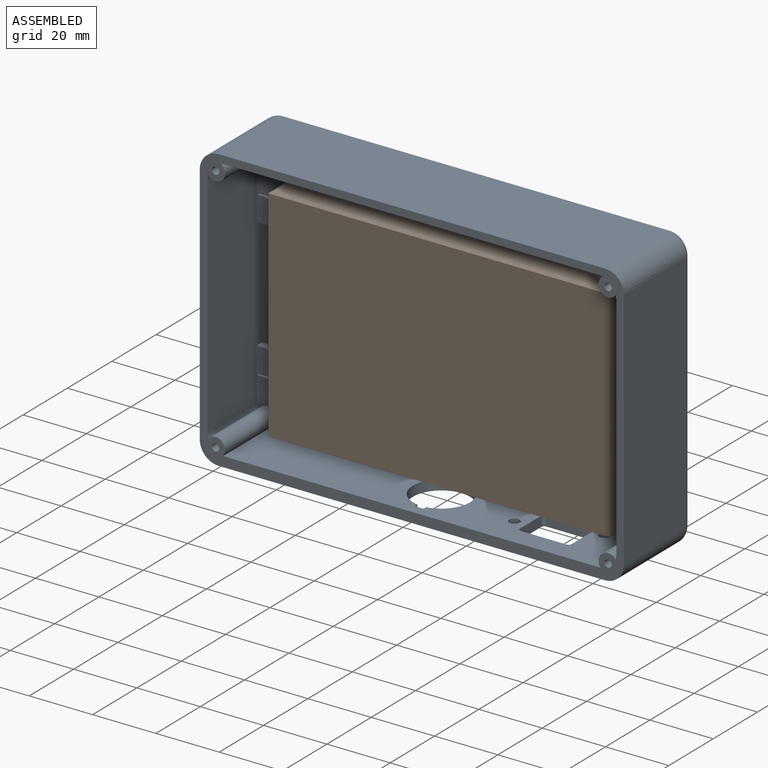
[diagram: assembled view]
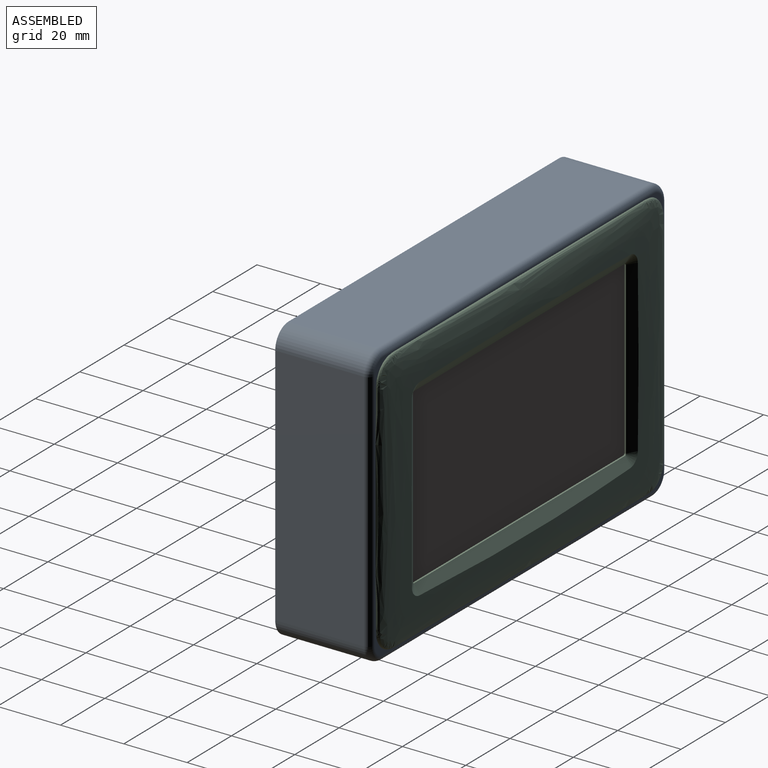
[diagram: assembled view, second angle]
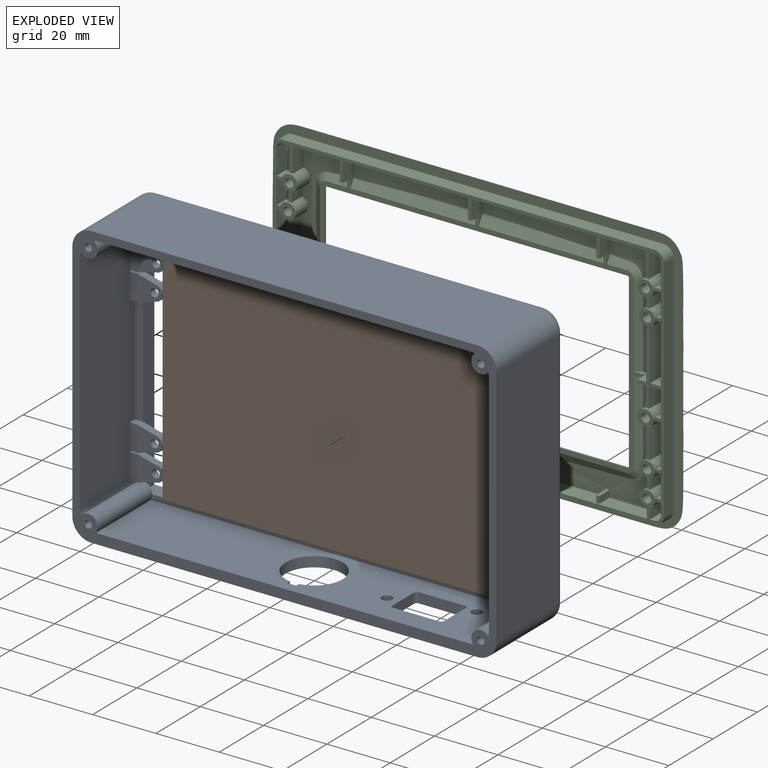
[diagram: exploded view]
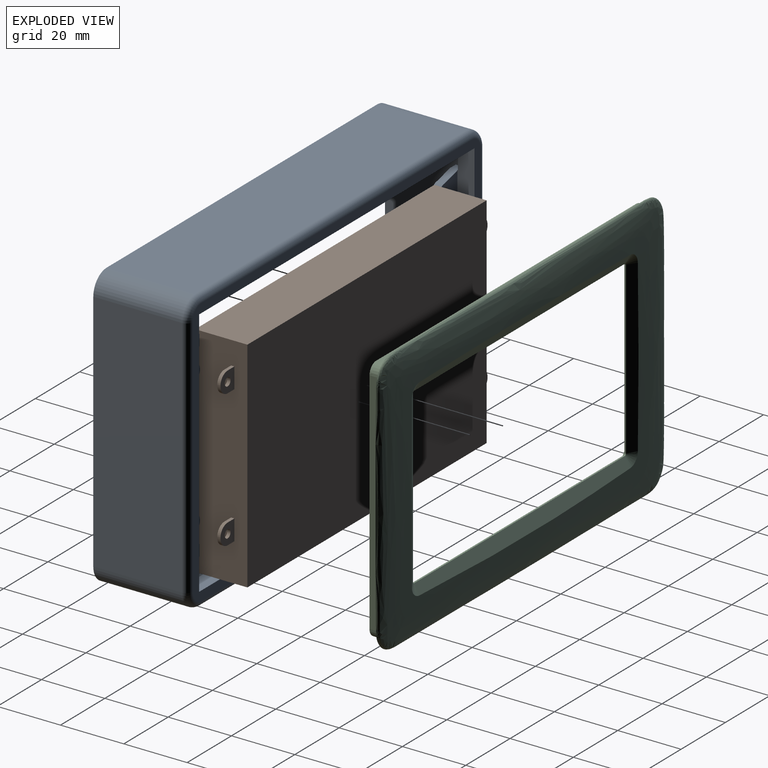
[diagram: exploded view, second angle]
ASSEMBLY  parts=3 mates=2
PART A: 162 faces, bbox 135x30x90 mm
  f0: plane 7.9x7.55mm, normal (0,1,0), area 39.3mm2, adj f71,f72,f73,f74,f77,f78,f151
  f1: plane 7.89x7.6mm, normal (0,1,0), area 37.4mm2, adj f36,f37,f38,f39,f157
  f2: plane 119.2x1.7mm, normal (0,-1,0), area 201.3mm2, adj f3,f32,f104,f141
  f3: cylinder r=3mm len=24.75mm, axis (0,-1,0), area 232.7mm2, adj f2,f12,f23,f29,f100,f141
  f4: plane 122x28mm, normal (0,0,-1), area 2951.9mm2, adj f29,f105,f106,f113,f123,f124,f125,f126
  f5: plane 130x85mm, normal (0,1,0), area 1199.6mm2, adj f30,f31,f32,f33,f109,f110,f111,f112
  f6: plane 2.5x1.63mm, normal (0,-1,0), area 2.1mm2, adj f7,f20,f31,f89,f104
  f7: cylinder r=6mm len=24.75mm, axis (0,1,0), area 39.7mm2, adj f6,f20,f29,f104
  f8: plane 120.37x2.5mm, normal (0,-1,0), area 297mm2, adj f9,f25,f26,f30,f98,f102
  f9: cylinder r=6mm len=24.75mm, axis (0,1,0), area 39.7mm2, adj f8,f26,f29,f102
  f10: plane 5.73x2.5mm, normal (0,-1,0), area 12.4mm2, adj f11,f24,f33,f75,f98
  f11: cylinder r=6mm len=24.75mm, axis (0,1,0), area 39.7mm2, adj f10,f24,f29,f98
  f12: plane 2.5x1.63mm, normal (0,-1,0), area 2.1mm2, adj f3,f23,f24,f33,f63
  f13: plane 2.5x0.45mm, normal (0,-1,0), area 1.1mm2, adj f20,f31,f35,f86
  f14: plane 5.73x2.5mm, normal (0,-1,0), area 12.4mm2, adj f20,f27,f31,f80,f102
  f15: plane 2.5x0.45mm, normal (0,-1,0), area 1.1mm2, adj f24,f33,f52,f62
  f16: plane 2.5x0.45mm, normal (0,-1,0), area 1.1mm2, adj f20,f31,f55,f90
  f17: plane 35.1x2.5mm, normal (0,-1,0), area 87.8mm2, adj f24,f33,f46,f51
  f18: plane 2.5x0.45mm, normal (0,-1,0), area 1.1mm2, adj f24,f33,f44,f76
  f19: plane 35.1x2.5mm, normal (0,-1,0), area 87.8mm2, adj f20,f31,f34,f56
  f20: plane 72.2x24.75mm, normal (-1,0,0), area 1710.1mm2, adj f6,f7,f13,f14,f16,f19,f27,f29
  f21: plane 77x28mm, normal (-1,0,0), area 2156mm2, adj f29,f105,f108,f116
  f22: plane 77x28mm, normal (1,0,0), area 2156mm2, adj f29,f106,f107,f109
  f23: cylinder r=6mm len=24.75mm, axis (0,1,0), area 39.7mm2, adj f3,f12,f24,f29
  f24: plane 72.2x24.75mm, normal (1,0,0), area 1710.1mm2, adj f10,f11,f12,f15,f17,f18,f23,f29
  f25: cylinder r=6mm len=24.75mm, axis (0,1,0), area 39.7mm2, adj f8,f26,f29,f98
  f26: plane 117.2x24.75mm, normal (0,0,-1), area 2900.7mm2, adj f8,f9,f25,f29
  f27: cylinder r=6mm len=24.75mm, axis (0,1,0), area 39.7mm2, adj f14,f20,f29,f102
  f28: plane 122x28mm, normal (0,0,1), area 3416mm2, adj f29,f107,f108,f112
  f29: plane 134x89mm, normal (0,-1,0), area 1205.3mm2, adj f3,f4,f7,f9,f11,f20,f21,f22
  f30: plane 124.2x5.25mm, normal (0,0,-1), area 652.1mm2, adj f5,f8,f31,f33,f99,f101
  f31: plane 79.2x5.4mm, normal (-1,0,0), area 420.6mm2, adj f5,f6,f13,f14,f16,f19,f30,f32
  f32: plane 124.2x5.25mm, normal (0,0,1), area 652.1mm2, adj f2,f5,f31,f33,f100,f103
  f33: plane 79.2x5.4mm, normal (1,0,0), area 420.6mm2, adj f5,f10,f12,f15,f17,f18,f30,f32
  f34: plane 2.6x2.4mm, normal (0,0,-1), area 6.2mm2, adj f19,f20,f31,f37,f40,f142
  f35: plane 2.6x2.4mm, normal (0,0,1), area 6.2mm2, adj f13,f20,f31,f39,f40,f142
  f36: cylinder r=2.5mm len=5mm, axis (0,1,0), area 18.8mm2, adj f1,f37,f39,f40
  f37: plane 5.3x2.4mm, normal (-0.27,0,-0.96), area 13.2mm2, adj f1,f34,f36,f40,f142,f157
  f38: cylinder r=1.3mm len=2.6mm, axis (0,1,0), area 19.6mm2, adj f1,f40
  f39: plane 5.3x2.4mm, normal (-0.27,0,0.96), area 13.2mm2, adj f1,f35,f36,f40,f142,f157
  f40: plane 10.4x8mm, normal (0,-1,0), area 59.8mm2, adj f20,f34,f35,f36,f37,f38,f39
  f41: plane 5.3x2.4mm, normal (0.27,0,-0.96), area 13.2mm2, adj f42,f46,f47,f122,f143,f150
  f42: cylinder r=2.5mm len=5mm, axis (0,1,0), area 18.8mm2, adj f41,f43,f47,f122
  f43: plane 5.3x2.4mm, normal (0.27,0,0.96), area 13.2mm2, adj f42,f44,f47,f122,f143,f150
  f44: plane 2.6x2.4mm, normal (0,0,1), area 6.2mm2, adj f18,f24,f33,f43,f47,f143
  f45: cylinder r=1.3mm len=2.6mm, axis (0,1,0), area 19.6mm2, adj f47,f122
  f46: plane 2.6x2.4mm, normal (0,0,-1), area 6.2mm2, adj f17,f24,f33,f41,f47,f143
  f47: plane 10.4x8mm, normal (0,-1,0), area 59.8mm2, adj f24,f41,f42,f43,f44,f45,f46
  f48: plane 5.3x2.4mm, normal (0.27,0,-0.96), area 13.2mm2, adj f49,f52,f54,f121,f144,f152
  f49: cylinder r=2.5mm len=5mm, axis (0,1,0), area 18.8mm2, adj f48,f50,f54,f121
  f50: plane 5.3x2.4mm, normal (0.27,0,0.96), area 13.2mm2, adj f49,f51,f54,f121,f144,f152
  f51: plane 2.6x2.4mm, normal (0,0,1), area 6.2mm2, adj f17,f24,f33,f50,f54,f144
  f52: plane 2.6x2.4mm, normal (0,0,-1), area 6.2mm2, adj f15,f24,f33,f48,f54,f144
  f53: cylinder r=1.3mm len=2.6mm, axis (0,1,0), area 19.6mm2, adj f54,f121
  f54: plane 10.4x8mm, normal (0,-1,0), area 59.8mm2, adj f24,f48,f49,f50,f51,f52,f53
  f55: plane 2.6x2.4mm, normal (0,0,-1), area 6.2mm2, adj f16,f20,f31,f59,f61,f145
  f56: plane 2.6x2.4mm, normal (0,0,1), area 6.2mm2, adj f19,f20,f31,f57,f61,f145
  f57: plane 5.3x2.4mm, normal (-0.27,0,0.96), area 13.2mm2, adj f56,f58,f61,f120,f145,f154
  f58: cylinder r=2.5mm len=5mm, axis (0,1,0), area 18.8mm2, adj f57,f59,f61,f120
  f59: plane 5.3x2.4mm, normal (-0.27,0,-0.96), area 13.2mm2, adj f55,f58,f61,f120,f145,f154
  f60: cylinder r=1.3mm len=2.6mm, axis (0,1,0), area 19.6mm2, adj f61,f120
  f61: plane 10.4x8mm, normal (0,-1,0), area 59.8mm2, adj f20,f55,f56,f57,f58,f59,f60
  f62: plane 2.6x2.4mm, normal (0,0,1), area 6.2mm2, adj f15,f24,f33,f68,f70,f146
  f63: plane 2.6x2.4mm, normal (0,0,-1), area 6.2mm2, adj f12,f24,f33,f64,f70,f146
  f64: plane 5.75x2.4mm, normal (0.25,0,-0.97), area 14.2mm2, adj f63,f65,f70,f119,f146,f153
  f65: cylinder r=2.5mm len=2.4mm, axis (0,1,0), area 4.8mm2, adj f64,f66,f70,f119
  f66: plane 3.47x2.4mm, normal (1,0,0), area 8.3mm2, adj f65,f67,f70,f119
  f67: cylinder r=2.5mm len=2.4mm, axis (0,1,0), area 4.8mm2, adj f66,f68,f70,f119
  f68: plane 5.75x2.4mm, normal (0.25,0,0.97), area 14.2mm2, adj f62,f67,f70,f119,f146,f153
  f69: cylinder r=1.3mm len=2.6mm, axis (0,1,0), area 19.6mm2, adj f70,f119
  f70: plane 10.15x8mm, normal (0,-1,0), area 61mm2, adj f24,f62,f63,f64,f65,f66,f67,f68
  f71: cylinder r=2.5mm len=2.4mm, axis (0,1,0), area 5.6mm2, adj f0,f72,f77,f79
  f72: plane 3x2.4mm, normal (1,0,0), area 7.2mm2, adj f0,f71,f73,f79
  f73: cylinder r=2.5mm len=2.4mm, axis (0,1,0), area 5.6mm2, adj f0,f72,f74,f79
  f74: plane 5.75x2.4mm, normal (0.25,0,0.97), area 14.2mm2, adj f0,f73,f75,f79,f147,f151
  f75: plane 2.6x2.4mm, normal (0,0,1), area 6.2mm2, adj f10,f24,f33,f74,f79,f147
  f76: plane 2.6x2.4mm, normal (0,0,-1), area 6.2mm2, adj f18,f24,f33,f77,f79,f147
  f77: plane 5.75x2.4mm, normal (0.25,0,-0.97), area 14.2mm2, adj f0,f71,f76,f79,f147,f151
  f78: cylinder r=1.3mm len=2.6mm, axis (0,1,0), area 19.6mm2, adj f0,f79
  f79: plane 10.35x8mm, normal (0,-1,0), area 61.7mm2, adj f24,f71,f72,f73,f74,f75,f76,f77
  f80: plane 2.6x2.4mm, normal (0,0,1), area 6.2mm2, adj f14,f20,f31,f81,f88,f148
  f81: plane 5.75x2.4mm, normal (-0.25,0,0.97), area 14.2mm2, adj f80,f82,f88,f118,f148,f156
  f82: cylinder r=2.5mm len=2.4mm, axis (0,1,0), area 4.8mm2, adj f81,f83,f88,f118
  f83: plane 3.47x2.4mm, normal (-1,0,0), area 8.3mm2, adj f82,f84,f88,f118
  f84: cylinder r=2.5mm len=2.4mm, axis (0,1,0), area 4.8mm2, adj f83,f85,f88,f118
  f85: plane 5.75x2.4mm, normal (-0.25,0,-0.97), area 14.2mm2, adj f84,f86,f88,f118,f148,f156
  f86: plane 2.6x2.4mm, normal (0,0,-1), area 6.2mm2, adj f13,f20,f31,f85,f88,f148
  f87: cylinder r=1.3mm len=2.6mm, axis (0,1,0), area 19.6mm2, adj f88,f118
  f88: plane 10.15x8mm, normal (0,-1,0), area 61mm2, adj f20,f80,f81,f82,f83,f84,f85,f86
  f89: plane 2.6x2.4mm, normal (0,0,-1), area 6.2mm2, adj f6,f20,f31,f96,f97,f149
  f90: plane 2.6x2.4mm, normal (0,0,1), area 6.2mm2, adj f16,f20,f31,f91,f97,f149
  f91: plane 5.75x2.4mm, normal (-0.25,0,0.97), area 14.2mm2, adj f90,f92,f97,f117,f149,f155
  f92: cylinder r=2.5mm len=2.4mm, axis (0,1,0), area 4.8mm2, adj f91,f93,f97,f117
  f93: plane 3.47x2.4mm, normal (-1,0,0), area 8.3mm2, adj f92,f94,f97,f117
  f94: cylinder r=2.5mm len=2.4mm, axis (0,1,0), area 4.8mm2, adj f93,f96,f97,f117
  f95: cylinder r=1.3mm len=2.6mm, axis (0,1,0), area 19.6mm2, adj f97,f117
  f96: plane 5.75x2.4mm, normal (-0.25,0,-0.97), area 14.2mm2, adj f89,f94,f97,f117,f149,f155
  f97: plane 10.15x8mm, normal (0,-1,0), area 61mm2, adj f20,f89,f90,f91,f92,f93,f94,f95
  f98: cylinder r=3mm len=24.75mm, axis (0,-1,0), area 253.3mm2, adj f8,f10,f11,f25,f29,f99
  f99: plane 3.1x3.1mm, normal (0,1,0), area 7.7mm2, adj f30,f33,f98
  f100: plane 3.1x3.1mm, normal (0,1,0), area 7.7mm2, adj f3,f32,f33
  f101: plane 3.1x3.1mm, normal (0,1,0), area 7.7mm2, adj f30,f31,f102
  f102: cylinder r=3mm len=24.75mm, axis (0,-1,0), area 253.3mm2, adj f8,f9,f14,f27,f29,f101
  f103: plane 3.1x3.1mm, normal (0,1,0), area 7.7mm2, adj f31,f32,f104
  f104: cylinder r=3mm len=24.75mm, axis (0,-1,0), area 232.7mm2, adj f2,f6,f7,f29,f103,f141
  f105: cylinder r=6mm len=28mm, axis (0,1,0), area 263.9mm2, adj f4,f21,f29,f115
  f106: cylinder r=6mm len=28mm, axis (0,-1,0), area 263.9mm2, adj f4,f22,f29,f111
  f107: cylinder r=6mm len=28mm, axis (0,1,0), area 263.9mm2, adj f22,f28,f29,f110
  f108: cylinder r=6mm len=28mm, axis (0,-1,0), area 263.9mm2, adj f21,f28,f29,f114
  f109: cylinder r=2mm len=77mm, axis (0,0,1), area 241.9mm2, adj f5,f22,f110,f111
  f110: torus R=4mm, axis (0,-1,0), area 26mm2, adj f5,f107,f109,f112
  f111: torus R=4mm, axis (0,-1,0), area 26mm2, adj f5,f106,f109,f113
  f112: cylinder r=2mm len=122mm, axis (-1,0,0), area 383.3mm2, adj f5,f28,f110,f114
  f113: cylinder r=2mm len=122mm, axis (1,0,0), area 383.3mm2, adj f4,f5,f111,f115
  f114: torus R=4mm, axis (0,-1,0), area 26mm2, adj f5,f108,f112,f116
  f115: torus R=4mm, axis (0,-1,0), area 26mm2, adj f5,f105,f113,f116
  f116: cylinder r=2mm len=77mm, axis (0,0,-1), area 241.9mm2, adj f5,f21,f114,f115
  f117: plane 7.9x7.35mm, normal (0,1,0), area 38.6mm2, adj f91,f92,f93,f94,f95,f96,f155
  f118: plane 7.9x7.35mm, normal (0,1,0), area 38.6mm2, adj f81,f82,f83,f84,f85,f87,f156
  f119: plane 7.9x7.35mm, normal (0,1,0), area 38.6mm2, adj f64,f65,f66,f67,f68,f69,f153
  f120: plane 7.89x7.6mm, normal (0,1,0), area 37.4mm2, adj f57,f58,f59,f60,f154
  f121: plane 7.89x7.6mm, normal (0,1,0), area 37.4mm2, adj f48,f49,f50,f53,f152
  f122: plane 7.89x7.6mm, normal (0,1,0), area 37.4mm2, adj f41,f42,f43,f45,f150
  f123: cylinder r=9mm len=18mm, axis (0,0,-1), area 172mm2, adj f4,f124,f126,f141
  f124: plane 3.2x1.21mm, normal (-1,0,0), area 3.9mm2, adj f4,f123,f125,f141
  f125: plane 3.2x2.8mm, normal (0,1,0), area 9mm2, adj f4,f124,f126,f141
  f126: plane 3.2x1.21mm, normal (1,0,0), area 3.9mm2, adj f4,f123,f125,f141
  f127: plane 14.4x3.2mm, normal (0,1,0), area 46.1mm2, adj f4,f128,f134,f141
  f128: cylinder r=1mm len=3.2mm, axis (0,0,-1), area 5mm2, adj f4,f127,f129,f141
  f129: plane 9.6x3.2mm, normal (1,0,0), area 30.7mm2, adj f4,f128,f130,f141
  f130: cylinder r=1mm len=3.2mm, axis (0,0,-1), area 5mm2, adj f4,f129,f131,f141
  f131: plane 14.4x3.2mm, normal (0,-1,0), area 46.1mm2, adj f4,f130,f132,f141
  f132: cylinder r=1mm len=3.2mm, axis (0,0,-1), area 5mm2, adj f4,f131,f133,f141
  f133: plane 9.6x3.2mm, normal (-1,0,0), area 30.7mm2, adj f4,f132,f134,f141
  f134: cylinder r=1mm len=3.2mm, axis (0,0,-1), area 5mm2, adj f4,f127,f133,f141
  f135: cylinder r=1.65mm len=3.3mm, axis (0,0,-1), area 33.2mm2, adj f4,f141
  f136: cylinder r=1.65mm len=3.3mm, axis (0,0,-1), area 33.2mm2, adj f4,f141
  f137: cone r=0mm half-angle=59deg, axis (0,-1,0), area 4mm2, adj f161
  f138: cone r=0mm half-angle=59deg, axis (0,-1,0), area 4mm2, adj f160
  f139: cone r=0mm half-angle=59deg, axis (0,-1,0), area 4mm2, adj f158
  f140: cone r=0mm half-angle=59deg, axis (0,-1,0), area 4mm2, adj f159
  f141: plane 119.2x24.75mm, normal (0,0,1), area 2486.1mm2, adj f2,f3,f29,f104,f123,f124,f125,f126
  f142: plane 8x0.15mm, normal (0,1,0), area 1.2mm2, adj f31,f34,f35,f37,f39,f157
  f143: plane 8x0.15mm, normal (0,1,0), area 1.2mm2, adj f33,f41,f43,f44,f46,f150
  f144: plane 8x0.15mm, normal (0,1,0), area 1.2mm2, adj f33,f48,f50,f51,f52,f152
  f145: plane 8x0.15mm, normal (0,1,0), area 1.2mm2, adj f31,f55,f56,f57,f59,f154
  f146: plane 8x0.15mm, normal (0,1,0), area 1.2mm2, adj f33,f62,f63,f64,f68,f153
  f147: plane 8x0.15mm, normal (0,1,0), area 1.2mm2, adj f33,f74,f75,f76,f77,f151
  f148: plane 8x0.15mm, normal (0,1,0), area 1.2mm2, adj f31,f80,f81,f85,f86,f156
  f149: plane 8x0.15mm, normal (0,1,0), area 1.2mm2, adj f31,f89,f90,f91,f96,f155
  f150: plane 7.97x0.15mm, normal (-0.71,0.71,0), area 1.7mm2, adj f41,f43,f122,f143
  f151: plane 7.97x0.15mm, normal (-0.71,0.71,0), area 1.7mm2, adj f0,f74,f77,f147
  f152: plane 7.97x0.15mm, normal (-0.71,0.71,0), area 1.7mm2, adj f48,f50,f121,f144
  f153: plane 7.97x0.15mm, normal (-0.71,0.71,0), area 1.7mm2, adj f64,f68,f119,f146
  f154: plane 7.97x0.15mm, normal (0.71,0.71,0), area 1.7mm2, adj f57,f59,f120,f145
  f155: plane 7.97x0.15mm, normal (0.71,0.71,0), area 1.7mm2, adj f91,f96,f117,f149
  f156: plane 7.97x0.15mm, normal (0.71,0.71,0), area 1.7mm2, adj f81,f85,f118,f148
  f157: plane 7.97x0.15mm, normal (0.71,0.71,0), area 1.7mm2, adj f1,f37,f39,f142
  f158: cone r=1.05mm half-angle=0.6deg, axis (0,-1,0), area 69.1mm2, adj f29,f139
  f159: cone r=1.05mm half-angle=0.6deg, axis (0,-1,0), area 69.1mm2, adj f29,f140
  f160: cone r=1.05mm half-angle=0.6deg, axis (0,-1,0), area 69.1mm2, adj f29,f138
  f161: cone r=1.05mm half-angle=0.6deg, axis (0,-1,0), area 69.1mm2, adj f29,f137
PART B: 30 faces, bbox 120.5x69.3x16.5 mm
  f0: plane 69.3x16.5mm, normal (1,0,0), area 1130.1mm2, adj f2,f3,f4,f5,f18,f20,f22,f23
  f1: plane 69.3x16.5mm, normal (-1,0,0), area 1130.1mm2, adj f2,f3,f4,f5,f7,f8,f10,f11
  f2: plane 107.9x16.5mm, normal (0,-1,0), area 1780.3mm2, adj f0,f1,f4,f5
  f3: plane 107.9x16.5mm, normal (0,1,0), area 1780.3mm2, adj f0,f1,f4,f5
  f4: plane 107.9x69.3mm, normal (0,0,-1), area 7477.5mm2, adj f0,f1,f2,f3
  f5: plane 107.9x69.3mm, normal (0,0,1), area 7477.5mm2, adj f0,f1,f2,f3
  f6: cylinder r=3.25mm len=6.5mm, axis (0,0,-1), area 10.5mm2, adj f7,f8,f10,f11
  f7: plane 3.05x1.03mm, normal (0,-1,0), area 3.1mm2, adj f1,f6,f10,f11
  f8: plane 3.05x1.03mm, normal (0,1,0), area 3.1mm2, adj f1,f6,f10,f11
  f9: cylinder r=1.3mm len=2.6mm, axis (0,0,-1), area 8.4mm2, adj f10,f11
  f10: plane 6.5x6.3mm, normal (0,0,1), area 31.1mm2, adj f1,f6,f7,f8,f9
  f11: plane 6.5x6.3mm, normal (0,0,-1), area 31.1mm2, adj f1,f6,f7,f8,f9
  f12: cylinder r=3.25mm len=6.5mm, axis (0,0,-1), area 10.5mm2, adj f13,f14,f16,f17
  f13: plane 3.05x1.03mm, normal (0,-1,0), area 3.1mm2, adj f1,f12,f16,f17
  f14: plane 3.05x1.03mm, normal (0,1,0), area 3.1mm2, adj f1,f12,f16,f17
  f15: cylinder r=1.3mm len=2.6mm, axis (0,0,-1), area 8.4mm2, adj f16,f17
  f16: plane 6.5x6.3mm, normal (0,0,1), area 31.1mm2, adj f1,f12,f13,f14,f15
  f17: plane 6.5x6.3mm, normal (0,0,-1), area 31.1mm2, adj f1,f12,f13,f14,f15
  f18: plane 3.05x1.03mm, normal (0,-1,0), area 3.1mm2, adj f0,f19,f22,f23
  f19: cylinder r=3.25mm len=6.5mm, axis (0,0,-1), area 10.5mm2, adj f18,f20,f22,f23
  f20: plane 3.05x1.03mm, normal (0,1,0), area 3.1mm2, adj f0,f19,f22,f23
  f21: cylinder r=1.3mm len=2.6mm, axis (0,0,-1), area 8.4mm2, adj f22,f23
  f22: plane 6.5x6.3mm, normal (0,0,1), area 31.1mm2, adj f0,f18,f19,f20,f21
  f23: plane 6.5x6.3mm, normal (0,0,-1), area 31.1mm2, adj f0,f18,f19,f20,f21
  f24: plane 3.05x1.03mm, normal (0,1,0), area 3.1mm2, adj f0,f26,f28,f29
  f25: plane 3.05x1.03mm, normal (0,-1,0), area 3.1mm2, adj f0,f26,f28,f29
  f26: cylinder r=3.25mm len=6.5mm, axis (0,0,-1), area 10.5mm2, adj f24,f25,f28,f29
  f27: cylinder r=1.3mm len=2.6mm, axis (0,0,-1), area 8.4mm2, adj f28,f29
  f28: plane 6.5x6.3mm, normal (0,0,1), area 31.1mm2, adj f0,f24,f25,f26,f27
  f29: plane 6.5x6.3mm, normal (0,0,-1), area 31.1mm2, adj f0,f24,f25,f26,f27
PART C: 201 faces, bbox 132.2x10.4x86.8 mm
  f0: cone r=1.34mm half-angle=0.2deg, axis (0,1,0), area 45.5mm2, adj f1,f2
  f1: bspline ~31.47x6.72mm, area 0mm2, adj f0
  f2: plane 5x5mm, normal (0,1,0), area 14mm2, adj f0,f3
  f3: cone r=2.5mm half-angle=0.2deg, axis (0,-1,0), area 70mm2, adj f2,f4,f190,f191,f192,f193,f194,f195
  f4: plane 4.91x1.68mm, normal (0,0.02,-1), area 6.6mm2, adj f3,f5,f190,f200
  f5: plane 7.54x4.83mm, normal (1,0.02,0), area 33.4mm2, adj f4,f6,f190,f200
  f6: plane 5.02x2.51mm, normal (0,0.02,1), area 9.4mm2, adj f5,f7,f190,f200
  f7: cone r=2.5mm half-angle=1.3deg, axis (0,-1,0), area 74.6mm2, adj f6,f8,f12,f13,f14,f187,f190,f191
  f8: plane 4.9x2.4mm, normal (0,0.02,-1), area 9.4mm2, adj f7,f9,f12,f200
  f9: plane 8.09x4.82mm, normal (1,0.02,0), area 34.9mm2, adj f8,f10,f12,f200
  f10: cone r=2mm half-angle=1.3deg, axis (0,1,0), area 13.5mm2, adj f9,f11,f12,f200
  f11: plane 4.76x2.37mm, normal (0,0.02,1), area 9.2mm2, adj f10,f12,f13,f200
  f12: bspline ~25.79x6.25mm, area 34.1mm2, adj f7,f8,f9,f10,f11,f13
  f13: plane 8.37x5.22mm, normal (-1,0.02,0), area 35.9mm2, adj f7,f11,f12,f200
  f14: plane 8.35x5.24mm, normal (1,0.02,0), area 36.2mm2, adj f7,f15,f194,f200
  f15: plane 113.61x7.21mm, normal (0,0.02,1), area 531mm2, adj f14,f16,f175,f176,f177,f178,f179,f180
  f16: plane 9.8x5.21mm, normal (-1,0.02,0), area 31.7mm2, adj f15,f17,f139,f140,f186,f194
  f17: plane 6.45x2.36mm, normal (0,0.87,-0.5), area 16.7mm2, adj f16,f18,f140,f194
  f18: cone r=2mm half-angle=60deg, axis (0,-1,0), area 11.6mm2, adj f17,f19,f140,f194
  f19: plane 26.83x2.71mm, normal (-0.5,0.87,0), area 66mm2, adj f18,f20,f140,f194
  f20: plane 6.75x4.62mm, normal (0,0.02,-1), area 18mm2, adj f19,f21,f138,f140,f194,f195
  f21: plane 3.31x1.14mm, normal (1,0.02,0), area 3.5mm2, adj f20,f22,f138,f140
  f22: plane 6.95x4.83mm, normal (0,0.02,1), area 18mm2, adj f21,f23,f137,f138,f140,f195
  f23: plane 26.94x2.81mm, normal (-0.5,0.87,0), area 66mm2, adj f22,f24,f137,f140
  f24: cone r=2mm half-angle=60deg, axis (0,-1,0), area 11.6mm2, adj f23,f25,f137,f140
  f25: plane 95.04x3.08mm, normal (0,0.87,0.5), area 301.8mm2, adj f24,f26,f137,f140
  f26: cone r=2mm half-angle=60deg, axis (0,-1,0), area 11.6mm2, adj f25,f27,f137,f140
  f27: plane 26.94x2.81mm, normal (0.5,0.87,0), area 66mm2, adj f26,f28,f137,f140
  f28: plane 6.7x4.8mm, normal (0,0.02,1), area 16.2mm2, adj f27,f29,f34,f35,f137,f140
  f29: plane 3.31x1.14mm, normal (-1,0.02,0), area 3.5mm2, adj f28,f30,f34,f140
  f30: plane 7.17x5.26mm, normal (0,0.02,-1), area 16.2mm2, adj f29,f31,f34,f35,f140,f176
  f31: plane 26.83x2.71mm, normal (0.5,0.87,0), area 66mm2, adj f30,f32,f140,f176
  f32: cone r=2mm half-angle=60deg, axis (0,-1,0), area 11.6mm2, adj f31,f33,f140,f176
  f33: plane 6.45x2.36mm, normal (0,0.87,-0.5), area 16.7mm2, adj f32,f140,f176,f177
  f34: plane 2.89x1mm, normal (0,1,0), area 2.9mm2, adj f28,f29,f30,f35
  f35: plane 24.05x5.22mm, normal (-1,0.02,-0.01), area 110.8mm2, adj f28,f30,f34,f36,f66,f67,f137,f176
  f36: cone r=2.5mm half-angle=0.2deg, axis (0,-1,0), area 70mm2, adj f35,f37,f50,f51,f52,f53,f54,f61
  f37: plane 4.81x3.44mm, normal (-1,0.02,0.04), area 16.3mm2, adj f36,f38,f50,f176
  f38: cone r=2.5mm half-angle=1.3deg, axis (0,-1,0), area 74.4mm2, adj f37,f39,f43,f44,f45,f47,f50,f51
  f39: plane 8.37x5.2mm, normal (1,0.02,0), area 35.8mm2, adj f38,f40,f43,f200
  f40: plane 4.69x1.95mm, normal (0,0.02,1), area 7.5mm2, adj f39,f41,f43,f200
  f41: cone r=2mm half-angle=1.3deg, axis (0,1,0), area 13.5mm2, adj f40,f42,f43,f200
  f42: plane 8.09x4.82mm, normal (-1,0.02,0), area 34.6mm2, adj f41,f43,f44,f200
  f43: bspline ~25.79x5.12mm, area 30.6mm2, adj f38,f39,f40,f41,f42,f44
  f44: plane 4.71x1.87mm, normal (0,0.02,-1), area 7.7mm2, adj f38,f42,f43,f200
  f45: plane 4.66x1.8mm, normal (0,0.02,1), area 7.8mm2, adj f38,f46,f52,f200
  f46: plane 7.54x4.83mm, normal (-1,0.02,0), area 33.4mm2, adj f45,f52,f53,f200
  f47: plane 5x5mm, normal (0,1,0), area 14mm2, adj f38,f48
  f48: cone r=1.34mm half-angle=0.2deg, axis (0,1,0), area 46.7mm2, adj f47,f49
  f49: bspline ~21.06x6.66mm, area 0mm2, adj f48
  f50: plane 3.47x1.13mm, normal (0,1,0), area 3.4mm2, adj f36,f37,f38,f51
  f51: plane 4.77x3.43mm, normal (1,0.02,-0.04), area 16.1mm2, adj f36,f38,f50,f52
  f52: bspline ~34.56x5.16mm, area 20.6mm2, adj f36,f38,f45,f46,f51,f53
  f53: plane 4.91x1.68mm, normal (0,0.02,-1), area 6.6mm2, adj f36,f46,f52,f200
  f54: plane 4.91x1.67mm, normal (0,0.02,1), area 6.7mm2, adj f36,f55,f61,f200
  f55: plane 27.79x4.86mm, normal (-1,0.02,0), area 124.8mm2, adj f54,f56,f57,f58,f59,f60,f61,f200
  f56: plane 4.96x1.95mm, normal (0,0.02,-1), area 8mm2, adj f55,f57,f67,f200
  f57: bspline ~36.99x5.16mm, area 25.7mm2, adj f55,f56,f58,f62,f67
  f58: plane 4.66x3.8mm, normal (0,0.02,1), area 15.7mm2, adj f55,f57,f59,f62
  f59: plane 3.63x1mm, normal (0,1,0), area 3.6mm2, adj f55,f58,f60,f62
  f60: plane 4.66x3.79mm, normal (0,0.02,-1), area 15.6mm2, adj f55,f59,f61,f62
  f61: bspline ~44.05x5.16mm, area 59.4mm2, adj f36,f54,f55,f60,f62
  f62: plane 24.09x5.24mm, normal (1,0.02,0.01), area 110.1mm2, adj f36,f57,f58,f59,f60,f61,f66,f67
  f63: plane 5x5mm, normal (0,1,0), area 14mm2, adj f36,f64
  f64: cone r=1.34mm half-angle=0.2deg, axis (0,1,0), area 45.5mm2, adj f63,f65
  f65: bspline ~31.47x6.72mm, area 0mm2, adj f64
  f66: plane 23.74x1.27mm, normal (0,1,0), area 23.7mm2, adj f35,f36,f62,f67
  f67: cone r=2.5mm half-angle=1.3deg, axis (0,-1,0), area 76.1mm2, adj f35,f56,f57,f62,f66,f68,f130,f131
  f68: plane 4.96x1.96mm, normal (0,0.02,1), area 8mm2, adj f67,f69,f130,f200
  f69: plane 13.93x4.98mm, normal (-1,0.02,0), area 63.2mm2, adj f68,f70,f130,f200
  f70: plane 4.93x1.73mm, normal (0,0.02,-1), area 6.6mm2, adj f69,f71,f130,f200
  f71: cone r=2.5mm half-angle=0.2deg, axis (0,-1,0), area 69.5mm2, adj f70,f72,f123,f124,f125,f126,f127,f130
  f72: plane 4.95x1.76mm, normal (0,0.02,1), area 6.6mm2, adj f71,f73,f123,f200
  f73: plane 8.05x5.3mm, normal (-1,0.02,0), area 33.1mm2, adj f72,f74,f123,f200
  f74: plane 4.84x1.74mm, normal (0,0.02,-1), area 6.5mm2, adj f73,f75,f123,f200
  f75: cone r=2.5mm half-angle=0.2deg, axis (0,-1,0), area 68.4mm2, adj f74,f76,f80,f81,f82,f120,f123,f124
  f76: plane 4.74x1.67mm, normal (0,0.02,1), area 6.4mm2, adj f75,f77,f80,f200
  f77: plane 4.71x3.8mm, normal (-1,0.02,0), area 15.7mm2, adj f76,f78,f80,f200
  f78: cone r=2mm half-angle=1.3deg, axis (0,1,0), area 13.5mm2, adj f77,f79,f80,f200
  f79: plane 4.61x1.56mm, normal (0,0.02,-1), area 6.1mm2, adj f78,f80,f81,f200
  f80: bspline ~14.42x5.02mm, area 13.9mm2, adj f75,f76,f77,f78,f79,f81
  f81: plane 4.8x3.83mm, normal (1,0.02,0), area 16.3mm2, adj f75,f79,f80,f200
  f82: plane 4.87x3.84mm, normal (-1,0.02,0), area 16.5mm2, adj f75,f83,f137,f200
  f83: plane 112.98x6.27mm, normal (0,0.02,-1), area 537.7mm2, adj f82,f84,f86,f87,f88,f116,f118,f119
  f84: plane 4.68x2.38mm, normal (-1,0.02,0), area 9.9mm2, adj f83,f85,f86,f137
  f85: plane 4.59x1.2mm, normal (0,0.02,-1), area 5mm2, adj f84,f86,f87,f137
  f86: plane 2.19x1mm, normal (0,1,0), area 2.2mm2, adj f83,f84,f85,f87
  f87: plane 4.66x2.38mm, normal (1,0.02,0), area 9.9mm2, adj f83,f85,f86,f137
  f88: plane 4.89x3.82mm, normal (1,0.02,0), area 16.3mm2, adj f83,f89,f137,f200
  f89: cone r=2.5mm half-angle=1.3deg, axis (0,-1,0), area 73.9mm2, adj f88,f90,f103,f104,f105,f106,f107,f111
  f90: plane 4.64x2.18mm, normal (0,0.02,-1), area 9.3mm2, adj f89,f91,f103,f200
  f91: plane 8.05x5.3mm, normal (1,0.02,0), area 33.1mm2, adj f90,f92,f103,f200
  f92: plane 4.95x1.76mm, normal (0,0.02,1), area 6.6mm2, adj f91,f93,f103,f200
  f93: cone r=2.5mm half-angle=0.2deg, axis (0,-1,0), area 69.5mm2, adj f92,f94,f99,f100,f103,f104,f105,f106
  f94: plane 4.93x1.73mm, normal (0,0.02,-1), area 6.6mm2, adj f93,f95,f99,f200
  f95: plane 42.44x4.86mm, normal (1,0.02,0), area 193.2mm2, adj f94,f96,f97,f98,f99,f198,f199,f200
  f96: plane 4.63x3.55mm, normal (0,0.02,-1), area 14.7mm2, adj f95,f97,f197,f198
  f97: plane 3.41x1mm, normal (0,1,0), area 3.4mm2, adj f95,f96,f98,f197
  f98: plane 4.63x3.55mm, normal (0,0.02,1), area 14.7mm2, adj f95,f97,f99,f197
  f99: bspline ~43.34x5.16mm, area 71.2mm2, adj f93,f94,f95,f98,f197
  f100: plane 5x5mm, normal (0,1,0), area 14mm2, adj f93,f101
  f101: cone r=1.34mm half-angle=0.2deg, axis (0,1,0), area 45.2mm2, adj f100,f102
  f102: bspline ~29.79x6.72mm, area 0mm2, adj f101
  f103: bspline ~32.89x5.16mm, area 21.9mm2, adj f89,f90,f91,f92,f93,f104
  f104: plane 4.73x3.45mm, normal (-1,0.02,0.08), area 16.1mm2, adj f89,f93,f103,f105
  f105: plane 3.53x1.28mm, normal (0,1,0), area 3.4mm2, adj f89,f93,f104,f106
  f106: plane 4.77x3.46mm, normal (1,0.02,-0.08), area 16.3mm2, adj f89,f93,f105,f137
  f107: plane 4.84x3.82mm, normal (-1,0.02,0), area 16.1mm2, adj f89,f108,f111,f200
  f108: plane 4.76x2.37mm, normal (0,0.02,-1), area 9.2mm2, adj f107,f109,f111,f200
  f109: cone r=2mm half-angle=1.3deg, axis (0,1,0), area 13.5mm2, adj f108,f110,f111,f200
  f110: plane 4.71x3.8mm, normal (1,0.02,0), area 15.7mm2, adj f109,f111,f112,f200
  f111: bspline ~14.42x6.15mm, area 17.3mm2, adj f89,f107,f108,f109,f110,f112
  f112: plane 4.62x2.19mm, normal (0,0.02,1), area 9.3mm2, adj f89,f110,f111,f200
  f113: plane 5x5mm, normal (0,1,0), area 14mm2, adj f89,f114
  f114: cone r=1.34mm half-angle=0.2deg, axis (0,1,0), area 46.4mm2, adj f113,f115
  f115: bspline ~11.69x11.42mm, area 0mm2, adj f114
  f116: plane 4.66x2.38mm, normal (-1,0.02,0), area 9.9mm2, adj f83,f117,f118,f137
  f117: plane 4.59x1.2mm, normal (0,0.02,-1), area 5mm2, adj f116,f118,f119,f137
  f118: plane 2.19x1mm, normal (0,1,0), area 2.2mm2, adj f83,f116,f117,f119
  f119: plane 4.68x2.38mm, normal (1,0.02,0), area 9.9mm2, adj f83,f117,f118,f137
  f120: plane 5x5mm, normal (0,1,0), area 14mm2, adj f75,f121
  f121: cone r=1.34mm half-angle=0.2deg, axis (0,1,0), area 44.4mm2, adj f120,f122
  f122: bspline ~11.42x6.54mm, area 0mm2, adj f121
  f123: bspline ~32.89x5.16mm, area 19.7mm2, adj f71,f72,f73,f74,f75,f124
  f124: plane 4.72x3.45mm, normal (1,0.02,0), area 16.2mm2, adj f71,f75,f123,f125
  f125: plane 3.45x1mm, normal (0,1,0), area 3.4mm2, adj f71,f75,f124,f126
  f126: plane 4.77x3.45mm, normal (-1,0.02,0), area 16.4mm2, adj f71,f75,f125,f137
  f127: plane 5x5mm, normal (0,1,0), area 14mm2, adj f71,f128
  f128: cone r=1.34mm half-angle=0.2deg, axis (0,1,0), area 45.2mm2, adj f127,f129
  f129: bspline ~29.79x6.72mm, area 0mm2, adj f128
  f130: bspline ~43.34x5.16mm, area 41.9mm2, adj f67,f68,f69,f70,f71,f131
  f131: plane 9.8x4.92mm, normal (1,0.02,-0.02), area 46.6mm2, adj f67,f71,f130,f132
  f132: plane 9.75x1.21mm, normal (0,1,0), area 9.7mm2, adj f67,f71,f131,f133
  f133: plane 9.84x4.98mm, normal (-1,0.02,0.02), area 47mm2, adj f67,f71,f132,f137
  f134: plane 5x5mm, normal (0,1,0), area 14mm2, adj f67,f135
  f135: cone r=1.34mm half-angle=0.2deg, axis (0,1,0), area 47.9mm2, adj f134,f136
  f136: bspline ~37.09x6.72mm, area 0mm2, adj f135
  f137: bspline ~115.65x51.34mm, area 970.6mm2, adj f22,f23,f24,f25,f26,f27,f28,f35
  f138: plane 3.34x1mm, normal (0,1,0), area 3.3mm2, adj f20,f21,f22,f195
  f139: plane 3.31x1.14mm, normal (0,0.02,1), area 3.5mm2, adj f16,f140,f185,f186
  f140: plane 105.9x60.61mm, normal (0,1,0), area 475.8mm2, adj f16,f17,f18,f19,f20,f21,f22,f23
  f141: plane 95.04x0.51mm, normal (0,-0.02,1), area 48.1mm2, adj f140,f142,f164,f170
  f142: plane 95.04x3.95mm, normal (0,-0.87,0.5), area 397.1mm2, adj f141,f143,f149,f150
  f143: cone r=0.5mm half-angle=60deg, axis (0,-1,0), area 10.7mm2, adj f142,f144,f150,f164
  f144: plane 56.24x5.49mm, normal (0.5,-0.87,0), area 189.8mm2, adj f143,f145,f150,f165
  f145: cone r=0.5mm half-angle=60deg, axis (0,-1,0), area 10.7mm2, adj f144,f146,f150,f166
  f146: plane 95.04x3.95mm, normal (0,-0.87,-0.5), area 397.3mm2, adj f145,f147,f150,f167
  f147: cone r=0.5mm half-angle=60deg, axis (0,-1,0), area 10.7mm2, adj f146,f148,f150,f168
  f148: plane 56.24x5.49mm, normal (-0.5,-0.87,0), area 189.7mm2, adj f147,f149,f150,f169
  f149: cone r=0.5mm half-angle=60deg, axis (0,-1,0), area 10.7mm2, adj f142,f148,f150,f170
  f150: bspline ~122.92x78.99mm, area 3406.6mm2, adj f142,f143,f144,f145,f146,f147,f148,f149
  f151: bspline ~80.02x3.96mm, area 302.5mm2, adj f150,f152,f161,f163
  f152: plane 129.8x84.4mm, normal (0,1,0), area 1187.9mm2, adj f151,f153,f154,f155,f156,f157,f158,f159
  f153: cone r=3mm half-angle=1.3deg, axis (0,-1,0), area 19.8mm2, adj f152,f154,f160,f200
  f154: plane 72.4x4.13mm, normal (-1,0.02,0), area 299.1mm2, adj f152,f153,f155,f200
  f155: cone r=3mm half-angle=1.3deg, axis (0,-1,0), area 19.8mm2, adj f152,f154,f156,f200
  f156: plane 117.35x4.13mm, normal (0,0.02,1), area 484.8mm2, adj f152,f155,f157,f200
  f157: cone r=3mm half-angle=1.3deg, axis (0,-1,0), area 19.8mm2, adj f152,f156,f158,f200
  f158: plane 72.4x4.13mm, normal (1,0.02,0), area 299.1mm2, adj f152,f157,f159,f200
  f159: cone r=3mm half-angle=1.3deg, axis (0,-1,0), area 19.8mm2, adj f152,f158,f160,f200
  f160: plane 117.35x4.13mm, normal (0,0.02,-1), area 484.8mm2, adj f152,f153,f159,f200
  f161: bspline ~125x3.38mm, area 413.7mm2, adj f150,f151,f152,f162
  f162: bspline ~80.02x3.96mm, area 302.5mm2, adj f150,f152,f161,f163
  f163: bspline ~125x3.38mm, area 413.7mm2, adj f150,f151,f152,f162
  f164: cone r=0.5mm half-angle=1.3deg, axis (0,-1,0), area 0.4mm2, adj f140,f141,f143,f165
  f165: plane 53.86x0.51mm, normal (1,-0.02,0), area 27.3mm2, adj f140,f144,f164,f166
  f166: cone r=0.5mm half-angle=1.3deg, axis (0,-1,0), area 0.4mm2, adj f140,f145,f165,f167
  f167: plane 95.04x0.51mm, normal (0,-0.02,-1), area 48.1mm2, adj f140,f146,f166,f168
  f168: cone r=0.5mm half-angle=1.3deg, axis (0,-1,0), area 0.4mm2, adj f140,f147,f167,f169
  f169: plane 53.86x0.51mm, normal (-1,-0.02,0), area 27.3mm2, adj f140,f148,f168,f170
  f170: cone r=0.5mm half-angle=1.3deg, axis (0,-1,0), area 0.4mm2, adj f140,f141,f149,f169
  f171: plane 39.95x3.67mm, normal (0,0.87,-0.5), area 128.9mm2, adj f140,f183,f184,f185
  f172: plane 3.31x1.14mm, normal (0,0.02,1), area 3.5mm2, adj f140,f181,f182,f183
  f173: plane 39.93x3.65mm, normal (0,0.87,-0.5), area 128.9mm2, adj f140,f179,f180,f181
  f174: plane 3.31x1.14mm, normal (0,0.02,1), area 3.5mm2, adj f140,f177,f178,f179
  f175: plane 8.35x5.23mm, normal (-1,0.02,0), area 36.2mm2, adj f15,f38,f176,f200
  f176: bspline ~52.05x36.9mm, area 234.5mm2, adj f15,f30,f31,f32,f33,f35,f36,f37
  f177: plane 9.8x5.21mm, normal (1,0.02,0), area 31.6mm2, adj f15,f33,f140,f174,f176,f178
  f178: plane 6.44x1mm, normal (0,1,0), area 6.4mm2, adj f15,f174,f177,f179
  f179: plane 9.8x5.24mm, normal (-1,0.02,0), area 31.8mm2, adj f15,f140,f173,f174,f178,f180
  f180: bspline ~74.83x25.89mm, area 253.9mm2, adj f15,f173,f179,f181
  f181: plane 9.79x5.61mm, normal (1,0.02,0), area 34.2mm2, adj f15,f140,f172,f173,f180,f182
  f182: plane 6.44x1mm, normal (0,1,0), area 6.4mm2, adj f15,f172,f181,f183
  f183: plane 9.79x5.61mm, normal (-1,0.02,0), area 34.2mm2, adj f15,f140,f171,f172,f182,f184
  f184: bspline ~74.47x25.89mm, area 253.9mm2, adj f15,f171,f183,f185
  f185: plane 9.8x5.23mm, normal (1,0.02,0), area 31.8mm2, adj f15,f139,f140,f171,f184,f186
  f186: plane 6.44x1mm, normal (0,1,0), area 6.4mm2, adj f15,f16,f139,f185
  f187: plane 5x5mm, normal (0,1,0), area 14mm2, adj f7,f188
  f188: cone r=1.34mm half-angle=0.2deg, axis (0,1,0), area 46.8mm2, adj f187,f189
  f189: bspline ~21.06x11.8mm, area 0mm2, adj f188
  f190: bspline ~34.56x5.16mm, area 21.9mm2, adj f3,f4,f5,f6,f7,f191
  f191: plane 4.77x3.45mm, normal (-1,0.02,-0.08), area 16.3mm2, adj f3,f7,f190,f192
  f192: plane 3.53x1.28mm, normal (0,1,0), area 3.4mm2, adj f3,f7,f191,f193
  f193: plane 4.81x3.46mm, normal (1,0.02,0.08), area 16.4mm2, adj f3,f7,f192,f194
  f194: bspline ~52.05x36.54mm, area 231.3mm2, adj f3,f7,f14,f15,f16,f17,f18,f19
  f195: plane 38.85x5.35mm, normal (1,0.02,0), area 182.2mm2, adj f3,f20,f22,f93,f137,f138,f194,f196
  f196: plane 38.4x1mm, normal (0,1,0), area 38.3mm2, adj f3,f93,f195,f197
  f197: plane 38.87x5.34mm, normal (-1,0.02,0), area 180.9mm2, adj f3,f93,f96,f97,f98,f99,f196,f198
  f198: bspline ~44.05x5.16mm, area 57.4mm2, adj f3,f95,f96,f197,f199
  f199: plane 4.91x1.67mm, normal (0,0.02,1), area 6.7mm2, adj f3,f95,f198,f200
  f200: plane 123.35x78.4mm, normal (0,1,0), area 432.9mm2, adj f3,f4,f5,f6,f7,f8,f9,f10
PLACE A t=(3.43,29.12,18.13)mm
PLACE B rot(axis=(0,-0.71,0.71),180deg) t=(3,24.39,13.63)mm
PLACE C rot(axis=(1,0,0),180deg) t=(3.25,29.17,18.2)mm
MATE cylindrical B.f12 <-> C.f36  axis (0,1,0) through (60,24.39,37.73)mm
MATE slider C.f89 <-> A.f65  axis (0,-1,0) through (-52.82,24.17,-13.92)mm
